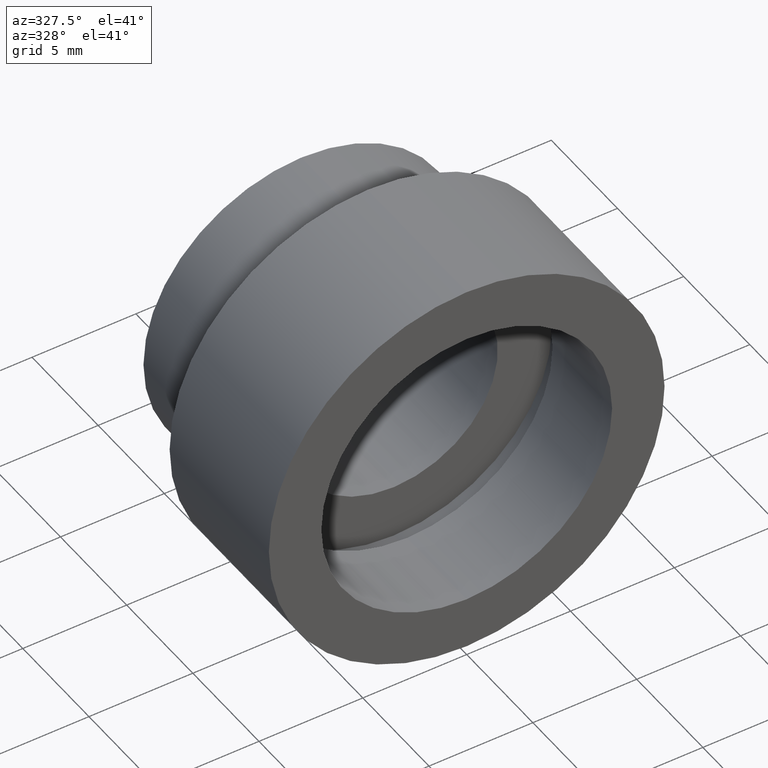
[diagram: clean part render]
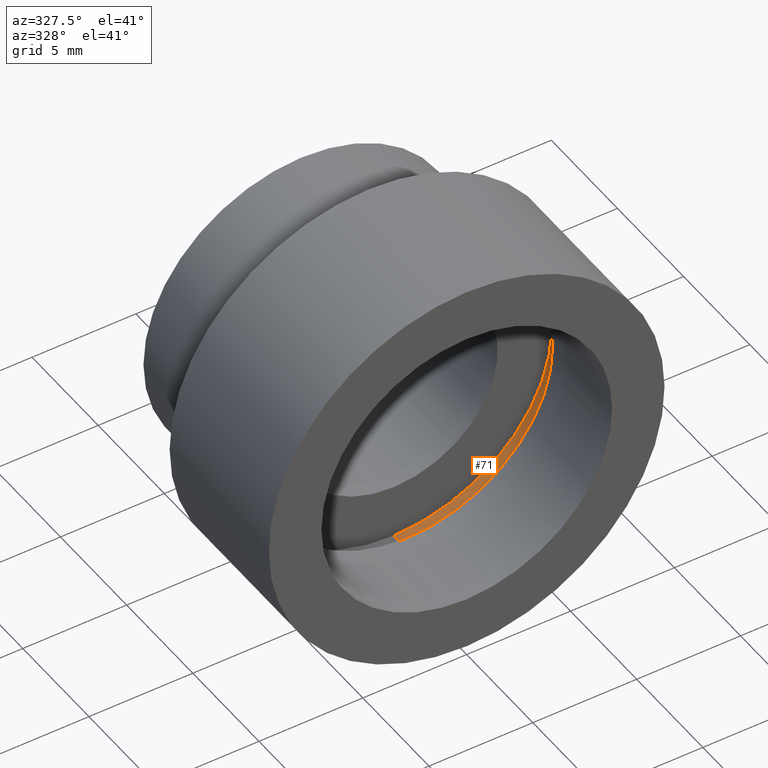
[diagram: same view with one face highlighted and labeled with its STEP entity id]
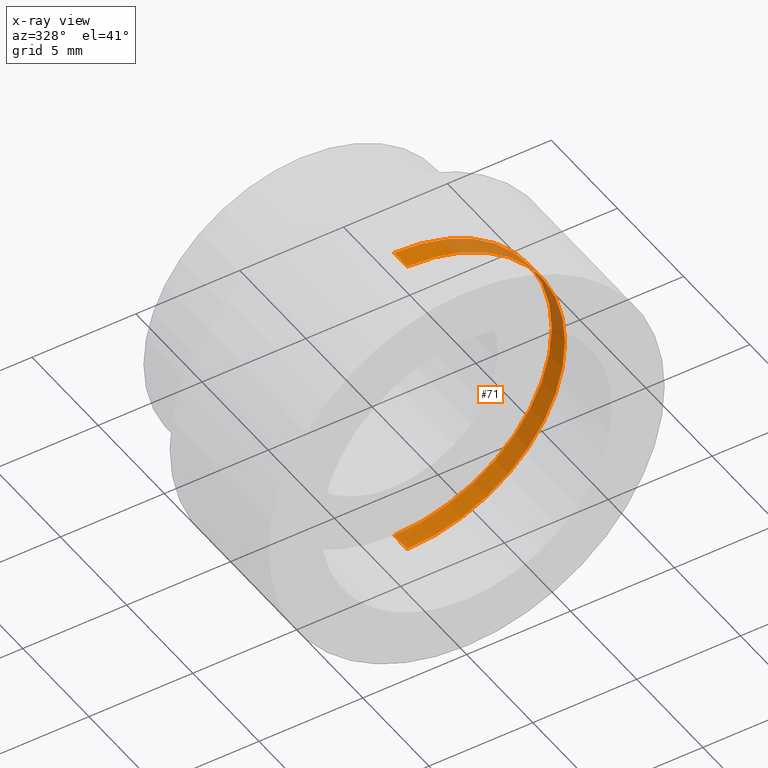
[diagram: x-ray of the same camera — body ghosted, the highlighted face saturated]
A machine part, auxiliary view. The second image highlights one B-rep face of the part: STEP entity #71.
The next image is the same camera in x-ray: the body ghosted, the highlighted face saturated — about 19% of this face is hidden behind the body in this view.
In plain terms, the highlighted cylindrical surface (partial cylindrical patch) has radius 7.6 mm, axis along (-0, 1, -0).
Its self-contained STEP definition (entity closure, byte-faithful):
#40 = AXIS2_PLACEMENT_3D ( 'NONE', #83, #563, #125 ) ;
#43 = DIRECTION ( 'NONE',  ( -0.0000000000000000000, 1.000000000000000000, -0.0000000000000000000 ) ) ;
#52 = DIRECTION ( 'NONE',  ( -0.0000000000000000000, 1.000000000000000000, -0.0000000000000000000 ) ) ;
#71 = ADVANCED_FACE ( 'NONE', ( #441 ), #184, .F. ) ;
#78 = EDGE_LOOP ( 'NONE', ( #100, #353, #433, #419 ) ) ;
#83 = CARTESIAN_POINT ( 'NONE',  ( 0.0000000000000000000, 161.3761669434274500, 0.0000000000000000000 ) ) ;
#99 = DIRECTION ( 'NONE',  ( 0.0000000000000000000, 0.0000000000000000000, 1.000000000000000000 ) ) ;
#100 = ORIENTED_EDGE ( 'NONE', *, *, #358, .F. ) ;
#104 = AXIS2_PLACEMENT_3D ( 'NONE', #325, #43, #265 ) ;
#125 = DIRECTION ( 'NONE',  ( 0.0000000000000000000, 0.0000000000000000000, 1.000000000000000000 ) ) ;
#130 = EDGE_CURVE ( 'NONE', #609, #600, #166, .T. ) ;
#164 = LINE ( 'NONE', #336, #560 ) ;
#166 = CIRCLE ( 'NONE', #617, 7.600000000000019200 ) ;
#181 = CARTESIAN_POINT ( 'NONE',  ( 0.0000000000000000000, 5.499999999999976900, 7.600000000000020100 ) ) ;
#184 = CYLINDRICAL_SURFACE ( 'NONE', #40, 7.600000000000020100 ) ;
#233 = CIRCLE ( 'NONE', #104, 7.600000000000020100 ) ;
#256 = CARTESIAN_POINT ( 'NONE',  ( 0.0000000000000000000, 4.499999999999976000, 7.600000000000019200 ) ) ;
#265 = DIRECTION ( 'NONE',  ( 0.0000000000000000000, 0.0000000000000000000, 1.000000000000000000 ) ) ;
#266 = EDGE_CURVE ( 'NONE', #609, #505, #164, .T. ) ;
#271 = CARTESIAN_POINT ( 'NONE',  ( 9.307315673519909100E-016, 161.3761669434274500, -7.600000000000020100 ) ) ;
#275 = CARTESIAN_POINT ( 'NONE',  ( 0.0000000000000000000, 4.499999999999976000, 0.0000000000000000000 ) ) ;
#308 = LINE ( 'NONE', #271, #398 ) ;
#325 = CARTESIAN_POINT ( 'NONE',  ( 0.0000000000000000000, 5.499999999999976900, 0.0000000000000000000 ) ) ;
#336 = CARTESIAN_POINT ( 'NONE',  ( 0.0000000000000000000, 161.3761669434274500, 7.600000000000020100 ) ) ;
#353 = ORIENTED_EDGE ( 'NONE', *, *, #130, .F. ) ;
#358 = EDGE_CURVE ( 'NONE', #600, #470, #308, .T. ) ;
#367 = DIRECTION ( 'NONE',  ( -0.0000000000000000000, 1.000000000000000000, -0.0000000000000000000 ) ) ;
#396 = EDGE_CURVE ( 'NONE', #505, #470, #233, .T. ) ;
#398 = VECTOR ( 'NONE', #367, 1000.000000000000000 ) ;
#419 = ORIENTED_EDGE ( 'NONE', *, *, #396, .T. ) ;
#433 = ORIENTED_EDGE ( 'NONE', *, *, #266, .T. ) ;
#441 = FACE_OUTER_BOUND ( 'NONE', #78, .T. ) ;
#470 = VERTEX_POINT ( 'NONE', #582 ) ;
#499 = CARTESIAN_POINT ( 'NONE',  ( 9.307315673519907200E-016, 4.499999999999976000, -7.600000000000019200 ) ) ;
#505 = VERTEX_POINT ( 'NONE', #181 ) ;
#560 = VECTOR ( 'NONE', #592, 1000.000000000000000 ) ;
#563 = DIRECTION ( 'NONE',  ( -0.0000000000000000000, 1.000000000000000000, -0.0000000000000000000 ) ) ;
#582 = CARTESIAN_POINT ( 'NONE',  ( 9.307315673519909100E-016, 5.499999999999976900, -7.600000000000020100 ) ) ;
#592 = DIRECTION ( 'NONE',  ( -0.0000000000000000000, 1.000000000000000000, -0.0000000000000000000 ) ) ;
#600 = VERTEX_POINT ( 'NONE', #499 ) ;
#609 = VERTEX_POINT ( 'NONE', #256 ) ;
#617 = AXIS2_PLACEMENT_3D ( 'NONE', #275, #52, #99 ) ;